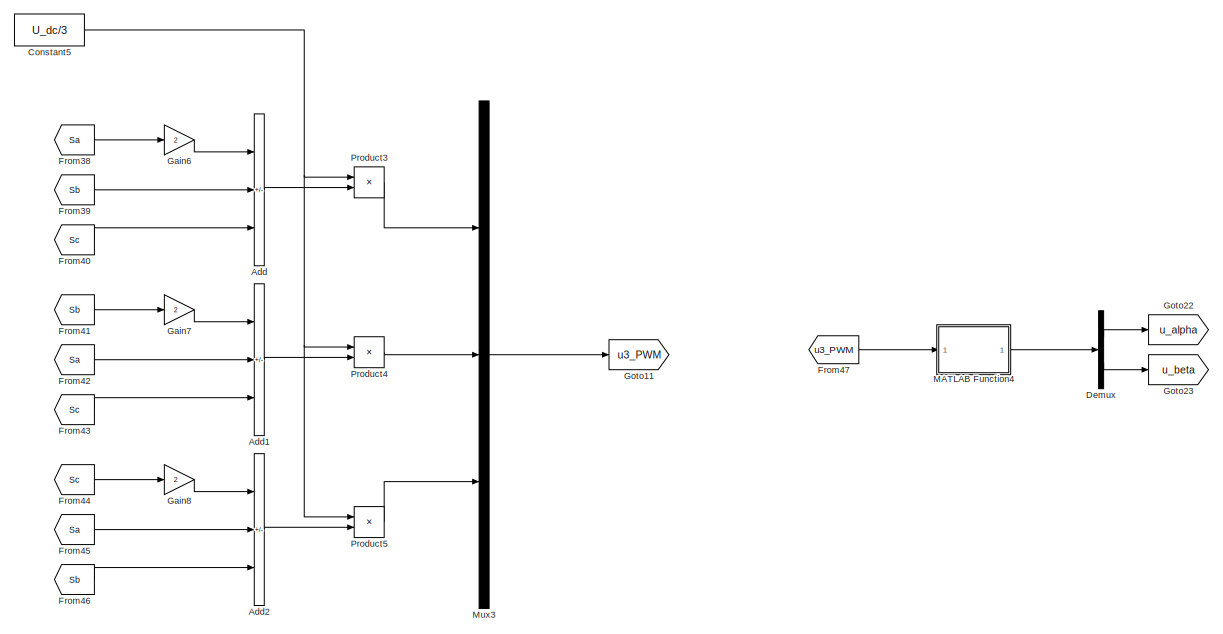
[diagram: root canvas - part 1/8, top right region]
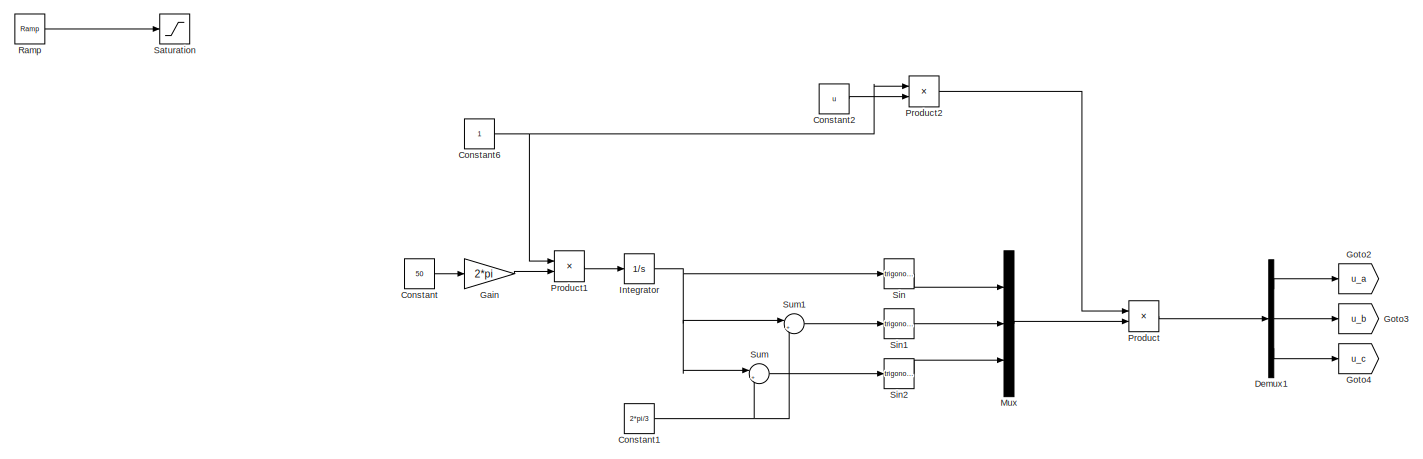
[diagram: root canvas - part 2/8, top left region]
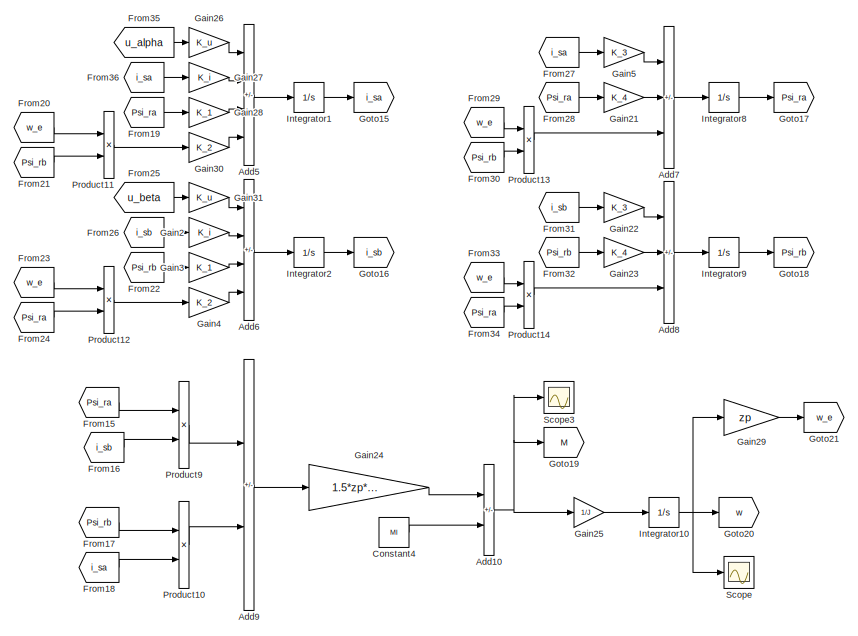
[diagram: root canvas - part 3/8, top right region]
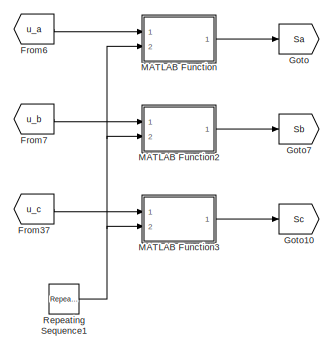
[diagram: root canvas - part 4/8, top center region]
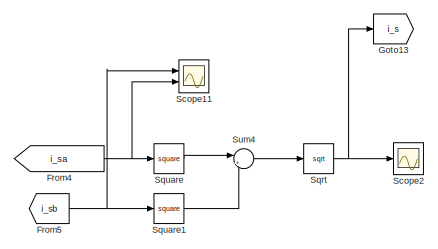
[diagram: root canvas - part 5/8, central region]
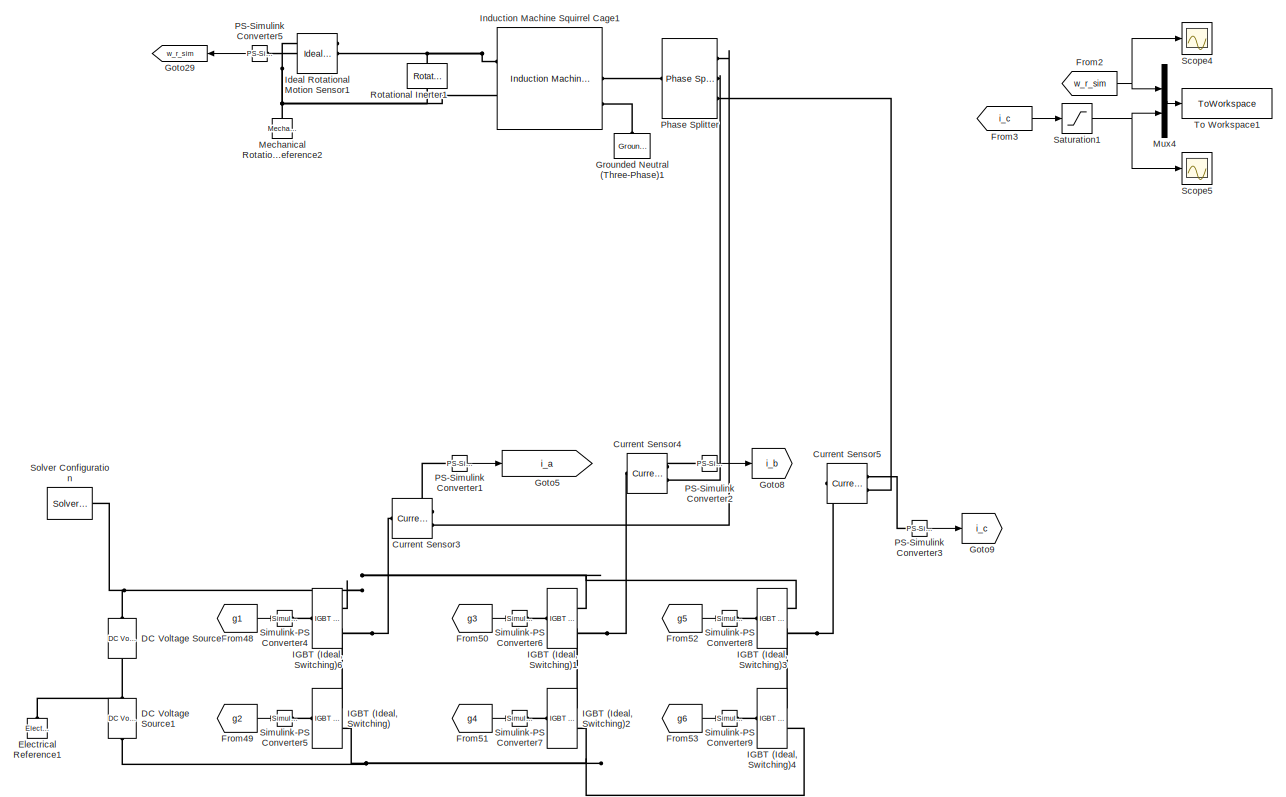
[diagram: root canvas - part 6/8, central region]
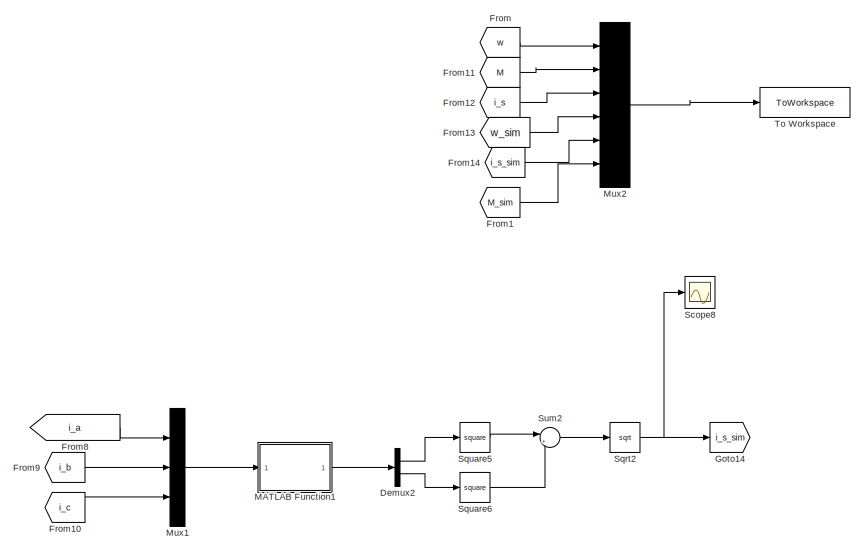
[diagram: root canvas - part 7/8, middle right region]
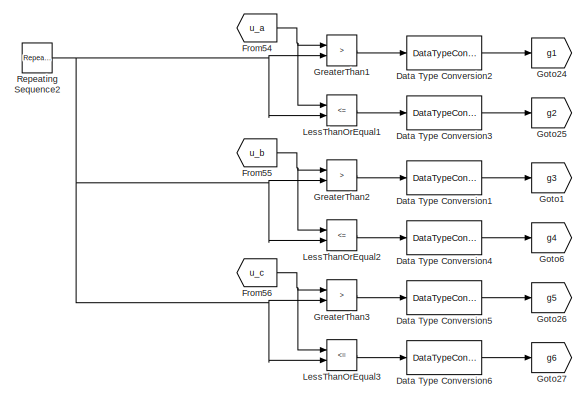
[diagram: root canvas - part 8/8, bottom center region]
MODEL slx_5d42364f2970
KIND model
CONFIG AbsTol = auto
CONFIG EnableMultiTasking = off
CONFIG FixedStep = 2e-5
CONFIG MaxStep = 1e-4
CONFIG MinStep = auto
CONFIG RelTol = 1e-3
CONFIG SampleTimeConstraint = Unconstrained
CONFIG SolverName = ode3
CONFIG StartTime = 0.0
CONFIG StopTime = 1.5
BLOCK [Sum] Add
  IconShape = rectangular
  Inputs = +--
  Ports = [3, 1]
BLOCK [Sum] Add1
  IconShape = rectangular
  Inputs = +--
  Ports = [3, 1]
BLOCK [Sum] Add10
  IconShape = rectangular
  Inputs = +-
  Ports = [2, 1]
BLOCK [Sum] Add2
  IconShape = rectangular
  Inputs = +--
  Ports = [3, 1]
BLOCK [Sum] Add5
  IconShape = rectangular
  Inputs = +-++
  Ports = [4, 1]
BLOCK [Sum] Add6
  IconShape = rectangular
  Inputs = +-+-
  Ports = [4, 1]
BLOCK [Sum] Add7
  IconShape = rectangular
  Inputs = +--
  Ports = [3, 1]
BLOCK [Sum] Add8
  IconShape = rectangular
  Inputs = +-+
  Ports = [3, 1]
BLOCK [Sum] Add9
  IconShape = rectangular
  Inputs = +-
  Ports = [2, 1]
BLOCK [Constant] Constant
  Value = 50
BLOCK [Constant] Constant1
  Value = 2*pi/3
BLOCK [Constant] Constant2
  Value = u
BLOCK [Constant] Constant4
  Value = Ml
BLOCK [Constant] Constant5
  Value = U_dc/3
BLOCK [Constant] Constant6
BLOCK [Reference] Current Sensor3  REF=fl_lib/Electrical/Electrical Sensors/Current Sensor
  Ports = [0, 0, 0, 0, 0, 1, 2]
  SourceBlock = fl_lib/Electrical/Electrical Sensors/Current Sensor
  SourceProductBaseCode = PW,SS,VE
  SourceType = Current Sensor
BLOCK [Reference] Current Sensor4  REF=fl_lib/Electrical/Electrical Sensors/Current Sensor
  Ports = [0, 0, 0, 0, 0, 1, 2]
  SourceBlock = fl_lib/Electrical/Electrical Sensors/Current Sensor
  SourceProductBaseCode = PW,SS,VE
  SourceType = Current Sensor
BLOCK [Reference] Current Sensor5  REF=fl_lib/Electrical/Electrical Sensors/Current Sensor
  Ports = [0, 0, 0, 0, 0, 1, 2]
  SourceBlock = fl_lib/Electrical/Electrical Sensors/Current Sensor
  SourceProductBaseCode = PW,SS,VE
  SourceType = Current Sensor
BLOCK [Reference] DC Voltage Source  REF=ee_lib/Additional
Components/SPICE Sources/DC Voltage Source
  NameLocation = right
  Ports = [0, 0, 0, 0, 0, 1, 1]
  SourceBlock = ee_lib/Additional\nComponents/SPICE Sources/DC Voltage Source
  SourceProductBaseCode = PS
  SourceType = DC Voltage Source
BLOCK [Reference] DC Voltage Source1  REF=ee_lib/Additional
Components/SPICE Sources/DC Voltage Source
  NameLocation = right
  Ports = [0, 0, 0, 0, 0, 1, 1]
  SourceBlock = ee_lib/Additional\nComponents/SPICE Sources/DC Voltage Source
  SourceProductBaseCode = PS
  SourceType = DC Voltage Source
BLOCK [DataTypeConversion] Data Type Conversion1
  RndMeth = Floor
  SaturateOnIntegerOverflow = off
BLOCK [DataTypeConversion] Data Type Conversion2
  RndMeth = Floor
  SaturateOnIntegerOverflow = off
BLOCK [DataTypeConversion] Data Type Conversion3
  RndMeth = Floor
  SaturateOnIntegerOverflow = off
BLOCK [DataTypeConversion] Data Type Conversion4
  RndMeth = Floor
  SaturateOnIntegerOverflow = off
BLOCK [DataTypeConversion] Data Type Conversion5
  RndMeth = Floor
  SaturateOnIntegerOverflow = off
BLOCK [DataTypeConversion] Data Type Conversion6
  RndMeth = Floor
  SaturateOnIntegerOverflow = off
BLOCK [Demux] Demux
  Outputs = 2
  Ports = [1, 2]
BLOCK [Demux] Demux1
  Outputs = 3
  Ports = [1, 3]
BLOCK [Demux] Demux2
  Outputs = 2
  Ports = [1, 2]
BLOCK [Reference] Electrical Reference1  REF=fl_lib/Electrical/Electrical Elements/Electrical Reference
  NameLocation = right
  Ports = [0, 0, 0, 0, 0, 1]
  SourceBlock = fl_lib/Electrical/Electrical Elements/Electrical Reference
  SourceProductBaseCode = PW,SS,VE
  SourceType = Electrical Reference
BLOCK [From] From
  GotoTag = w
BLOCK [From] From1
  GotoTag = M_sim
BLOCK [From] From10
  GotoTag = i_c
BLOCK [From] From11
  GotoTag = M
BLOCK [From] From12
  GotoTag = i_s
BLOCK [From] From13
  GotoTag = w_sim
BLOCK [From] From14
  GotoTag = i_s_sim
BLOCK [From] From15
  GotoTag = Psi_ra
BLOCK [From] From16
  GotoTag = i_sb
BLOCK [From] From17
  GotoTag = Psi_rb
BLOCK [From] From18
  GotoTag = i_sa
BLOCK [From] From19
  GotoTag = Psi_ra
BLOCK [From] From2
  GotoTag = w_r_sim
BLOCK [From] From20
  GotoTag = w_e
BLOCK [From] From21
  GotoTag = Psi_rb
BLOCK [From] From22
  GotoTag = Psi_rb
BLOCK [From] From23
  GotoTag = w_e
BLOCK [From] From24
  GotoTag = Psi_ra
BLOCK [From] From25
  GotoTag = u_beta
BLOCK [From] From26
  GotoTag = i_sb
BLOCK [From] From27
  GotoTag = i_sa
BLOCK [From] From28
  GotoTag = Psi_ra
BLOCK [From] From29
  GotoTag = w_e
BLOCK [From] From3
  GotoTag = i_c
BLOCK [From] From30
  GotoTag = Psi_rb
BLOCK [From] From31
  GotoTag = i_sb
BLOCK [From] From32
  GotoTag = Psi_rb
BLOCK [From] From33
  GotoTag = w_e
BLOCK [From] From34
  GotoTag = Psi_ra
BLOCK [From] From35
  GotoTag = u_alpha
BLOCK [From] From36
  GotoTag = i_sa
BLOCK [From] From37
  GotoTag = u_c
BLOCK [From] From38
  GotoTag = Sa
BLOCK [From] From39
  GotoTag = Sb
BLOCK [From] From4
  GotoTag = i_sa
BLOCK [From] From40
  GotoTag = Sc
BLOCK [From] From41
  GotoTag = Sb
BLOCK [From] From42
  GotoTag = Sa
BLOCK [From] From43
  GotoTag = Sc
BLOCK [From] From44
  GotoTag = Sc
BLOCK [From] From45
  GotoTag = Sa
BLOCK [From] From46
  GotoTag = Sb
BLOCK [From] From47
  GotoTag = u3_PWM
BLOCK [From] From48
  GotoTag = g1
BLOCK [From] From49
  GotoTag = g2
BLOCK [From] From5
  GotoTag = i_sb
BLOCK [From] From50
  GotoTag = g3
BLOCK [From] From51
  GotoTag = g4
BLOCK [From] From52
  GotoTag = g5
BLOCK [From] From53
  GotoTag = g6
BLOCK [From] From54
  GotoTag = u_a
BLOCK [From] From55
  GotoTag = u_b
BLOCK [From] From56
  GotoTag = u_c
BLOCK [From] From6
  GotoTag = u_a
BLOCK [From] From7
  GotoTag = u_b
BLOCK [From] From8
  GotoTag = i_a
BLOCK [From] From9
  GotoTag = i_b
BLOCK [Gain] Gain
  Gain = 2*pi
BLOCK [Gain] Gain2
  Gain = K_i
BLOCK [Gain] Gain21
  Gain = K_4
BLOCK [Gain] Gain22
  Gain = K_3
BLOCK [Gain] Gain23
  Gain = K_4
BLOCK [Gain] Gain24
  Gain = 1.5*zp*Lm/Lr
BLOCK [Gain] Gain25
  Gain = 1/J
BLOCK [Gain] Gain26
  Gain = K_u
BLOCK [Gain] Gain27
  Gain = K_i
BLOCK [Gain] Gain28
  Gain = K_1
BLOCK [Gain] Gain29
  Gain = zp
BLOCK [Gain] Gain3
  Gain = K_1
BLOCK [Gain] Gain30
  Gain = K_2
BLOCK [Gain] Gain31
  Gain = K_u
BLOCK [Gain] Gain4
  Gain = K_2
BLOCK [Gain] Gain5
  Gain = K_3
BLOCK [Gain] Gain6
  Gain = 2
BLOCK [Gain] Gain7
  Gain = 2
BLOCK [Gain] Gain8
  Gain = 2
BLOCK [Goto] Goto
  GotoTag = Sa
BLOCK [Goto] Goto1
  GotoTag = g3
BLOCK [Goto] Goto10
  GotoTag = Sc
BLOCK [Goto] Goto11
  GotoTag = u3_PWM
BLOCK [Goto] Goto13
  GotoTag = i_s
BLOCK [Goto] Goto14
  GotoTag = i_s_sim
BLOCK [Goto] Goto15
  GotoTag = i_sa
BLOCK [Goto] Goto16
  GotoTag = i_sb
BLOCK [Goto] Goto17
  GotoTag = Psi_ra
BLOCK [Goto] Goto18
  GotoTag = Psi_rb
BLOCK [Goto] Goto19
  GotoTag = M
BLOCK [Goto] Goto2
  GotoTag = u_a
BLOCK [Goto] Goto20
  GotoTag = w
BLOCK [Goto] Goto21
  GotoTag = w_e
BLOCK [Goto] Goto22
  GotoTag = u_alpha
BLOCK [Goto] Goto23
  GotoTag = u_beta
BLOCK [Goto] Goto24
  GotoTag = g1
BLOCK [Goto] Goto25
  GotoTag = g2
BLOCK [Goto] Goto26
  GotoTag = g5
BLOCK [Goto] Goto27
  GotoTag = g6
BLOCK [Goto] Goto29
  GotoTag = w_r_sim
  NameLocation = top
BLOCK [Goto] Goto3
  GotoTag = u_b
BLOCK [Goto] Goto4
  GotoTag = u_c
BLOCK [Goto] Goto5
  GotoTag = i_a
BLOCK [Goto] Goto6
  GotoTag = g4
BLOCK [Goto] Goto7
  GotoTag = Sb
BLOCK [Goto] Goto8
  GotoTag = i_b
BLOCK [Goto] Goto9
  GotoTag = i_c
BLOCK [RelationalOperator] GreaterThan1
  InputSameDT = off
  Operator = >
  OutDataTypeStr = boolean
  Ports = [2, 1]
  RndMeth = Simplest
BLOCK [RelationalOperator] GreaterThan2
  InputSameDT = off
  Operator = >
  OutDataTypeStr = boolean
  Ports = [2, 1]
  RndMeth = Simplest
BLOCK [RelationalOperator] GreaterThan3
  InputSameDT = off
  Operator = >
  OutDataTypeStr = boolean
  Ports = [2, 1]
  RndMeth = Simplest
BLOCK [Reference] Grounded Neutral (Three-Phase)1  REF=ee_lib/Connectors &
References/Grounded Neutral
(Three-Phase)
  NameLocation = right
  Ports = [0, 0, 0, 0, 0, 1]
  SourceBlock = ee_lib/Connectors &\nReferences/Grounded Neutral\n(Three-Phase)
  SourceProductBaseCode = PS
  SourceType = Grounded Neutral\n(Three-Phase)
BLOCK [Reference] IGBT (Ideal, Switching)  REF=ee_lib/Semiconductors &
Converters/IGBT
(Ideal,
Switching)
  Ports = [0, 0, 0, 0, 0, 1, 2]
  SourceBlock = ee_lib/Semiconductors &\nConverters/IGBT\n(Ideal,\nSwitching)
  SourceProductBaseCode = PS
  SourceType = IGBT\n(Ideal,\nSwitching)
BLOCK [Reference] IGBT (Ideal, Switching)1  REF=ee_lib/Semiconductors &
Converters/IGBT
(Ideal,
Switching)
  Ports = [0, 0, 0, 0, 0, 1, 2]
  SourceBlock = ee_lib/Semiconductors &\nConverters/IGBT\n(Ideal,\nSwitching)
  SourceProductBaseCode = PS
  SourceType = IGBT\n(Ideal,\nSwitching)
BLOCK [Reference] IGBT (Ideal, Switching)2  REF=ee_lib/Semiconductors &
Converters/IGBT
(Ideal,
Switching)
  Ports = [0, 0, 0, 0, 0, 1, 2]
  SourceBlock = ee_lib/Semiconductors &\nConverters/IGBT\n(Ideal,\nSwitching)
  SourceProductBaseCode = PS
  SourceType = IGBT\n(Ideal,\nSwitching)
BLOCK [Reference] IGBT (Ideal, Switching)3  REF=ee_lib/Semiconductors &
Converters/IGBT
(Ideal,
Switching)
  Ports = [0, 0, 0, 0, 0, 1, 2]
  SourceBlock = ee_lib/Semiconductors &\nConverters/IGBT\n(Ideal,\nSwitching)
  SourceProductBaseCode = PS
  SourceType = IGBT\n(Ideal,\nSwitching)
BLOCK [Reference] IGBT (Ideal, Switching)4  REF=ee_lib/Semiconductors &
Converters/IGBT
(Ideal,
Switching)
  Ports = [0, 0, 0, 0, 0, 1, 2]
  SourceBlock = ee_lib/Semiconductors &\nConverters/IGBT\n(Ideal,\nSwitching)
  SourceProductBaseCode = PS
  SourceType = IGBT\n(Ideal,\nSwitching)
BLOCK [Reference] IGBT (Ideal, Switching)6  REF=ee_lib/Semiconductors &
Converters/IGBT
(Ideal,
Switching)
  Ports = [0, 0, 0, 0, 0, 1, 2]
  SourceBlock = ee_lib/Semiconductors &\nConverters/IGBT\n(Ideal,\nSwitching)
  SourceProductBaseCode = PS
  SourceType = IGBT\n(Ideal,\nSwitching)
BLOCK [Reference] Ideal Rotational Motion Sensor1  REF=fl_lib/Mechanical/Mechanical Sensors/Ideal Rotational
Motion Sensor
  NameLocation = top
  Ports = [0, 0, 0, 0, 0, 1, 3]
  SourceBlock = fl_lib/Mechanical/Mechanical Sensors/Ideal Rotational\nMotion Sensor
  SourceProductBaseCode = PW,SS,VE
  SourceType = Ideal Rotational\nMotion Sensor
BLOCK [Reference] Induction Machine Squirrel Cage1  REF=ee_lib/Electromechanical/Asynchronous/Induction Machine
Squirrel Cage
  Ports = [0, 0, 0, 0, 0, 2, 3]
  SourceBlock = ee_lib/Electromechanical/Asynchronous/Induction Machine\nSquirrel Cage
  SourceProductBaseCode = PS
  SourceType = Induction Machine\nSquirrel Cage
BLOCK [Integrator] Integrator
  Ports = [1, 1]
BLOCK [Integrator] Integrator1
  Ports = [1, 1]
BLOCK [Integrator] Integrator10
  Ports = [1, 1]
BLOCK [Integrator] Integrator2
  Ports = [1, 1]
BLOCK [Integrator] Integrator8
  Ports = [1, 1]
BLOCK [Integrator] Integrator9
  Ports = [1, 1]
BLOCK [RelationalOperator] LessThanOrEqual1
  InputSameDT = off
  Operator = <=
  OutDataTypeStr = boolean
  Ports = [2, 1]
  RndMeth = Simplest
BLOCK [RelationalOperator] LessThanOrEqual2
  InputSameDT = off
  Operator = <=
  OutDataTypeStr = boolean
  Ports = [2, 1]
  RndMeth = Simplest
BLOCK [RelationalOperator] LessThanOrEqual3
  InputSameDT = off
  Operator = <=
  OutDataTypeStr = boolean
  Ports = [2, 1]
  RndMeth = Simplest
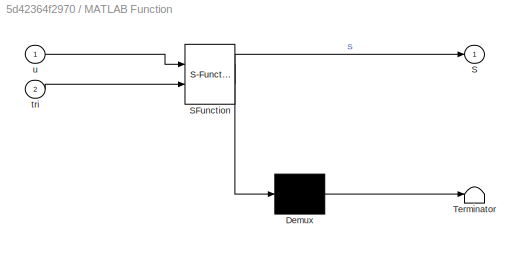
BLOCK [SubSystem] MATLAB Function
  ErrorFcn = Stateflow.Translate.translate
  PermitHierarchicalResolution = ExplicitOnly
  Ports = [2, 1]
  RequestExecContextInheritance = off
  SFBlockType = MATLAB Function
  TreatAsAtomicUnit = on
BLOCK [Demux] MATLAB Function/ Demux 
  Outputs = 1
  Ports = [1, 1]
BLOCK [S-Function] MATLAB Function/ SFunction 
  EnableBusSupport = on
  FunctionName = sf_sfun
  PortCounts = [2 2]
  Ports = [2, 2]
  SFcnIsStateOwnerBlock = off
  SFunctionDeploymentMode = off
  Tag = Stateflow S-Function 2
BLOCK [Terminator] MATLAB Function/ Terminator 
BLOCK [Outport] MATLAB Function/S
BLOCK [Inport] MATLAB Function/tri
  Port = 2
BLOCK [Inport] MATLAB Function/u
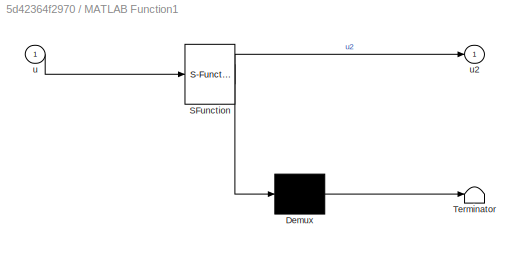
BLOCK [SubSystem] MATLAB Function1
  ErrorFcn = Stateflow.Translate.translate
  PermitHierarchicalResolution = ExplicitOnly
  Ports = [1, 1]
  RequestExecContextInheritance = off
  SFBlockType = MATLAB Function
  SystemSampleTime = 2e-5
  TreatAsAtomicUnit = on
BLOCK [Demux] MATLAB Function1/ Demux 
  Outputs = 1
  Ports = [1, 1]
BLOCK [S-Function] MATLAB Function1/ SFunction 
  EnableBusSupport = on
  FunctionName = sf_sfun
  PortCounts = [1 2]
  Ports = [1, 2]
  SFcnIsStateOwnerBlock = off
  SFunctionDeploymentMode = off
  Tag = Stateflow S-Function 1
BLOCK [Terminator] MATLAB Function1/ Terminator 
BLOCK [Inport] MATLAB Function1/u
BLOCK [Outport] MATLAB Function1/u2
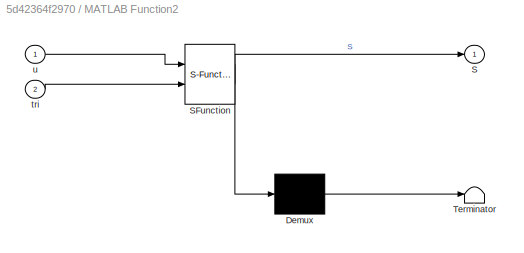
BLOCK [SubSystem] MATLAB Function2
  ErrorFcn = Stateflow.Translate.translate
  PermitHierarchicalResolution = ExplicitOnly
  Ports = [2, 1]
  RequestExecContextInheritance = off
  SFBlockType = MATLAB Function
  TreatAsAtomicUnit = on
BLOCK [Demux] MATLAB Function2/ Demux 
  Outputs = 1
  Ports = [1, 1]
BLOCK [S-Function] MATLAB Function2/ SFunction 
  EnableBusSupport = on
  FunctionName = sf_sfun
  PortCounts = [2 2]
  Ports = [2, 2]
  SFcnIsStateOwnerBlock = off
  SFunctionDeploymentMode = off
  Tag = Stateflow S-Function 3
BLOCK [Terminator] MATLAB Function2/ Terminator 
BLOCK [Outport] MATLAB Function2/S
BLOCK [Inport] MATLAB Function2/tri
  Port = 2
BLOCK [Inport] MATLAB Function2/u
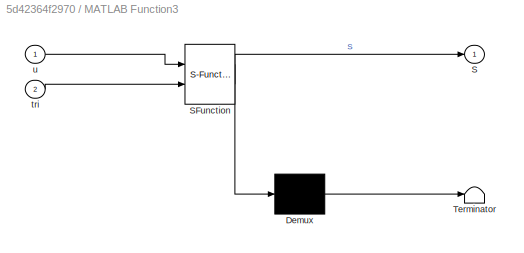
BLOCK [SubSystem] MATLAB Function3
  ErrorFcn = Stateflow.Translate.translate
  PermitHierarchicalResolution = ExplicitOnly
  Ports = [2, 1]
  RequestExecContextInheritance = off
  SFBlockType = MATLAB Function
  TreatAsAtomicUnit = on
BLOCK [Demux] MATLAB Function3/ Demux 
  Outputs = 1
  Ports = [1, 1]
BLOCK [S-Function] MATLAB Function3/ SFunction 
  EnableBusSupport = on
  FunctionName = sf_sfun
  PortCounts = [2 2]
  Ports = [2, 2]
  SFcnIsStateOwnerBlock = off
  SFunctionDeploymentMode = off
  Tag = Stateflow S-Function 4
BLOCK [Terminator] MATLAB Function3/ Terminator 
BLOCK [Outport] MATLAB Function3/S
BLOCK [Inport] MATLAB Function3/tri
  Port = 2
BLOCK [Inport] MATLAB Function3/u
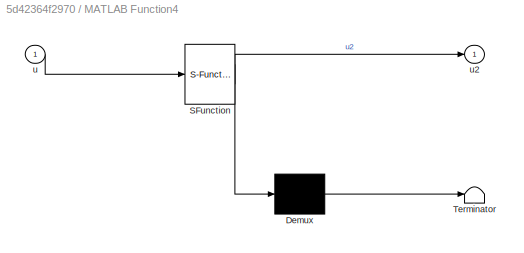
BLOCK [SubSystem] MATLAB Function4
  ErrorFcn = Stateflow.Translate.translate
  PermitHierarchicalResolution = ExplicitOnly
  Ports = [1, 1]
  RequestExecContextInheritance = off
  SFBlockType = MATLAB Function
  SystemSampleTime = 2e-5
  TreatAsAtomicUnit = on
BLOCK [Demux] MATLAB Function4/ Demux 
  Outputs = 1
  Ports = [1, 1]
BLOCK [S-Function] MATLAB Function4/ SFunction 
  EnableBusSupport = on
  FunctionName = sf_sfun
  PortCounts = [1 2]
  Ports = [1, 2]
  SFcnIsStateOwnerBlock = off
  SFunctionDeploymentMode = off
  Tag = Stateflow S-Function 5
BLOCK [Terminator] MATLAB Function4/ Terminator 
BLOCK [Inport] MATLAB Function4/u
BLOCK [Outport] MATLAB Function4/u2
BLOCK [Reference] Mechanical Rotational Reference2  REF=fl_lib/Mechanical/Rotational Elements/Mechanical
Rotational Reference
  NameLocation = right
  Ports = [0, 0, 0, 0, 0, 1]
  SourceBlock = fl_lib/Mechanical/Rotational Elements/Mechanical\nRotational Reference
  SourceProductBaseCode = PW,SS,VE
  SourceType = Mechanical\nRotational Reference
BLOCK [Mux] Mux
  DisplayOption = bar
  Inputs = 3
  Ports = [3, 1]
BLOCK [Mux] Mux1
  DisplayOption = bar
  Inputs = 3
  Ports = [3, 1]
BLOCK [Mux] Mux2
  DisplayOption = bar
  Inputs = 6
  Ports = [6, 1]
BLOCK [Mux] Mux3
  DisplayOption = bar
  Inputs = 3
  Ports = [3, 1]
BLOCK [Mux] Mux4
  DisplayOption = bar
  Inputs = 2
  Ports = [2, 1]
BLOCK [Reference] PS-Simulink Converter1  REF=nesl_utility/PS-Simulink
Converter
  Ports = [0, 1, 0, 0, 0, 1]
  SourceBlock = nesl_utility/PS-Simulink\nConverter
  SourceProductBaseCode = SS,PW,VE
  SourceType = PS-Simulink\nConverter
BLOCK [Reference] PS-Simulink Converter2  REF=nesl_utility/PS-Simulink
Converter
  Ports = [0, 1, 0, 0, 0, 1]
  SourceBlock = nesl_utility/PS-Simulink\nConverter
  SourceProductBaseCode = SS,PW,VE
  SourceType = PS-Simulink\nConverter
BLOCK [Reference] PS-Simulink Converter3  REF=nesl_utility/PS-Simulink
Converter
  Ports = [0, 1, 0, 0, 0, 1]
  SourceBlock = nesl_utility/PS-Simulink\nConverter
  SourceProductBaseCode = SS,PW,VE
  SourceType = PS-Simulink\nConverter
BLOCK [Reference] PS-Simulink Converter5  REF=nesl_utility/PS-Simulink
Converter
  NameLocation = top
  Ports = [0, 1, 0, 0, 0, 1]
  SourceBlock = nesl_utility/PS-Simulink\nConverter
  SourceProductBaseCode = SS,PW,VE
  SourceType = PS-Simulink\nConverter
BLOCK [Reference] Phase Splitter  REF=ee_lib/Connectors &
References/Phase Splitter
  Ports = [0, 0, 0, 0, 0, 1, 3]
  SourceBlock = ee_lib/Connectors &\nReferences/Phase Splitter
  SourceProductBaseCode = PS
  SourceType = Phase Splitter
BLOCK [Product] Product
  Ports = [2, 1]
BLOCK [Product] Product1
  Ports = [2, 1]
BLOCK [Product] Product10
  Ports = [2, 1]
BLOCK [Product] Product11
  Ports = [2, 1]
BLOCK [Product] Product12
  Ports = [2, 1]
BLOCK [Product] Product13
  Ports = [2, 1]
BLOCK [Product] Product14
  Ports = [2, 1]
BLOCK [Product] Product2
  Ports = [2, 1]
BLOCK [Product] Product3
  Ports = [2, 1]
BLOCK [Product] Product4
  Ports = [2, 1]
BLOCK [Product] Product5
  Ports = [2, 1]
BLOCK [Product] Product9
  Ports = [2, 1]
BLOCK [Reference] Ramp  REF=simulink/Sources/Ramp
  Ports = [0, 1]
  SourceBlock = simulink/Sources/Ramp
  SourceProductBaseCode = SL
  SourceType = Ramp
BLOCK [Reference] Repeating Sequence1  REF=simulink/Sources/Repeating
Sequence
  Ports = [0, 1]
  SourceBlock = simulink/Sources/Repeating\nSequence
  SourceProductBaseCode = SL
  SourceType = Repeating table
BLOCK [Reference] Repeating Sequence2  REF=simulink/Sources/Repeating
Sequence
  Ports = [0, 1]
  SourceBlock = simulink/Sources/Repeating\nSequence
  SourceProductBaseCode = SL
  SourceType = Repeating table
BLOCK [Reference] Rotational Inerter1  REF=fl_lib/Mechanical/Rotational Elements/Rotational Inerter
  NameLocation = left
  Ports = [0, 0, 0, 0, 0, 1, 1]
  SourceBlock = fl_lib/Mechanical/Rotational Elements/Rotational Inerter
  SourceProductBaseCode = PW,SS,VE
  SourceType = Rotational Inerter
BLOCK [Saturate] Saturation
  LowerLimit = 0.05
  UpperLimit = 1
BLOCK [Saturate] Saturation1
  LowerLimit = 2
  UpperLimit = 5
BLOCK [Scope] Scope
  Floating = off
  NumInputPorts = 1
  Ports = [1]
  ScopeSpecificationString = Simulink.scopes.TimeScopeBlockCfg('CurrentConfiguration', extmgr.ConfigurationSet(extmgr.Configuration('Core','General UI',true),extmgr.Configuration('Core','Source UI',true),extmgr.Configuration('Sources','WiredSimulink',true,'DataLoggingVariableName','ScopeData1'),extmgr.Configuration('Visuals','Time Domain',true,'SerializedDisplays',{struct('MinYLimReal','-0.80873','MaxYLimReal','6.63842','YLab...<+1421ch>
BLOCK [Scope] Scope11
  Floating = off
  NumInputPorts = 2
  Ports = [2]
  ScopeSpecificationString = Simulink.scopes.TimeScopeBlockCfg('CurrentConfiguration', extmgr.ConfigurationSet(extmgr.Configuration('Core','General UI',true),extmgr.Configuration('Core','Source UI',true),extmgr.Configuration('Sources','WiredSimulink',true,'DataLoggingVariableName','ScopeData6'),extmgr.Configuration('Visuals','Time Domain',true,'SerializedDisplays',{struct('MinYLimReal','-16.54464','MaxYLimReal','20.1128','YLa...<+1417ch>
BLOCK [Scope] Scope2
  Floating = off
  NumInputPorts = 1
  Ports = [1]
  ScopeSpecificationString = Simulink.scopes.TimeScopeBlockCfg('CurrentConfiguration', extmgr.ConfigurationSet(extmgr.Configuration('Core','General UI',true),extmgr.Configuration('Core','Source UI',true),extmgr.Configuration('Sources','WiredSimulink',true,'DataLoggingVariableName','ScopeData3'),extmgr.Configuration('Visuals','Time Domain',true,'SerializedDisplays',{struct('MinYLimReal','-2.09113','MaxYLimReal','18.82016','YLa...<+1398ch>
BLOCK [Scope] Scope3
  Floating = off
  NumInputPorts = 1
  Ports = [1]
  ScopeSpecificationString = Simulink.scopes.TimeScopeBlockCfg('CurrentConfiguration', extmgr.ConfigurationSet(extmgr.Configuration('Core','General UI',true),extmgr.Configuration('Core','Source UI',true),extmgr.Configuration('Sources','WiredSimulink',true,'DataLoggingVariableName','ScopeData2'),extmgr.Configuration('Visuals','Time Domain',true,'SerializedDisplays',{struct('MinYLimReal','-13.57274','MaxYLimReal','28.92729','YL...<+1420ch>
BLOCK [Scope] Scope4
  Floating = off
  NumInputPorts = 1
  Ports = [1]
  ScopeSpecificationString = Simulink.scopes.TimeScopeBlockCfg('CurrentConfiguration', extmgr.ConfigurationSet(extmgr.Configuration('Core','General UI',true),extmgr.Configuration('Core','Source UI',true),extmgr.Configuration('Sources','WiredSimulink',true,'DataLoggingVariableName','ScopeData1'),extmgr.Configuration('Visuals','Time Domain',true,'SerializedDisplays',{struct('MinYLimReal','-13.44276','MaxYLimReal','120.98481','Y...<+1415ch>
BLOCK [Scope] Scope5
  Floating = off
  NumInputPorts = 1
  Ports = [1]
  ScopeSpecificationString = Simulink.scopes.TimeScopeBlockCfg('CurrentConfiguration', extmgr.ConfigurationSet(extmgr.Configuration('Core','General UI',true),extmgr.Configuration('Core','Source UI',true),extmgr.Configuration('Sources','WiredSimulink',true,'DataLoggingVariableName','ScopeData2'),extmgr.Configuration('Visuals','Time Domain',true,'SerializedDisplays',{struct('MinYLimReal','-1.93987','MaxYLimReal','3.05837','YLab...<+1406ch>
BLOCK [Scope] Scope8
  Floating = off
  NumInputPorts = 1
  Ports = [1]
  ScopeSpecificationString = Simulink.scopes.TimeScopeBlockCfg('CurrentConfiguration', extmgr.ConfigurationSet(extmgr.Configuration('Core','General UI',true),extmgr.Configuration('Core','Source UI',true),extmgr.Configuration('Sources','WiredSimulink',true,'DataLoggingVariableName','ScopeData6'),extmgr.Configuration('Visuals','Time Domain',true,'SerializedDisplays',{struct('MinYLimReal','-0.7338','MaxYLimReal','6.60422','YLabe...<+1395ch>
BLOCK [Reference] Simulink-PS Converter4  REF=nesl_utility/Simulink-PS
Converter
  Ports = [1, 0, 0, 0, 0, 0, 1]
  SourceBlock = nesl_utility/Simulink-PS\nConverter
  SourceProductBaseCode = SS,PW,VE
  SourceType = Simulink-PS\nConverter
BLOCK [Reference] Simulink-PS Converter5  REF=nesl_utility/Simulink-PS
Converter
  Ports = [1, 0, 0, 0, 0, 0, 1]
  SourceBlock = nesl_utility/Simulink-PS\nConverter
  SourceProductBaseCode = SS,PW,VE
  SourceType = Simulink-PS\nConverter
BLOCK [Reference] Simulink-PS Converter6  REF=nesl_utility/Simulink-PS
Converter
  Ports = [1, 0, 0, 0, 0, 0, 1]
  SourceBlock = nesl_utility/Simulink-PS\nConverter
  SourceProductBaseCode = SS,PW,VE
  SourceType = Simulink-PS\nConverter
BLOCK [Reference] Simulink-PS Converter7  REF=nesl_utility/Simulink-PS
Converter
  Ports = [1, 0, 0, 0, 0, 0, 1]
  SourceBlock = nesl_utility/Simulink-PS\nConverter
  SourceProductBaseCode = SS,PW,VE
  SourceType = Simulink-PS\nConverter
BLOCK [Reference] Simulink-PS Converter8  REF=nesl_utility/Simulink-PS
Converter
  Ports = [1, 0, 0, 0, 0, 0, 1]
  SourceBlock = nesl_utility/Simulink-PS\nConverter
  SourceProductBaseCode = SS,PW,VE
  SourceType = Simulink-PS\nConverter
BLOCK [Reference] Simulink-PS Converter9  REF=nesl_utility/Simulink-PS
Converter
  Ports = [1, 0, 0, 0, 0, 0, 1]
  SourceBlock = nesl_utility/Simulink-PS\nConverter
  SourceProductBaseCode = SS,PW,VE
  SourceType = Simulink-PS\nConverter
BLOCK [Trigonometry] Sin
  Ports = [1, 1]
BLOCK [Trigonometry] Sin1
  Ports = [1, 1]
BLOCK [Trigonometry] Sin2
  Ports = [1, 1]
BLOCK [Reference] Solver Configuration  REF=nesl_utility/Solver
Configuration
  Ports = [0, 0, 0, 0, 0, 0, 1]
  SourceBlock = nesl_utility/Solver\nConfiguration
  SourceProductBaseCode = SS,PW,VE
  SourceType = Solver\nConfiguration
BLOCK [Sqrt] Sqrt
BLOCK [Sqrt] Sqrt2
BLOCK [Math] Square
  Operator = square
  Ports = [1, 1]
BLOCK [Math] Square1
  Operator = square
  Ports = [1, 1]
BLOCK [Math] Square5
  Operator = square
  Ports = [1, 1]
BLOCK [Math] Square6
  Operator = square
  Ports = [1, 1]
BLOCK [Sum] Sum
  Inputs = |++
  Ports = [2, 1]
BLOCK [Sum] Sum1
  Inputs = |+-
  Ports = [2, 1]
BLOCK [Sum] Sum2
  Inputs = |++
  Ports = [2, 1]
BLOCK [Sum] Sum4
  Inputs = |++
  Ports = [2, 1]
BLOCK [ToWorkspace] To Workspace
  FixptAsFi = on
  MaxDataPoints = inf
  Ports = [1]
  SampleTime = 1e-4
  SaveFormat = Structure With Time
  VariableName = simout
BLOCK [ToWorkspace] To Workspace1
  FixptAsFi = on
  MaxDataPoints = inf
  Ports = [1]
  SampleTime = -1
  SaveFormat = Timeseries
  VariableName = sim
NET Add10:1 -> Gain25:1, Goto19:1, Scope3:1
LINE Add1:1 -> Product4:2
LINE Add2:1 -> Product5:2
LINE Add5:1 -> Integrator1:1
LINE Add6:1 -> Integrator2:1
LINE Add7:1 -> Integrator8:1
LINE Add8:1 -> Integrator9:1
LINE Add9:1 -> Gain24:1
LINE Add:1 -> Product3:2
NET Constant1:1 -> Sum1:2, Sum:2
LINE Constant2:1 -> Product2:2
LINE Constant4:1 -> Add10:2
NET Constant5:1 -> Product3:1, Product4:1, Product5:1
NET Constant6:1 -> Product1:1, Product2:1
LINE Constant:1 -> Gain:1
LINE Data Type Conversion1:1 -> Goto1:1
LINE Data Type Conversion2:1 -> Goto24:1
LINE Data Type Conversion3:1 -> Goto25:1
LINE Data Type Conversion4:1 -> Goto6:1
LINE Data Type Conversion5:1 -> Goto26:1
LINE Data Type Conversion6:1 -> Goto27:1
LINE Demux1:1 -> Goto2:1
LINE Demux1:2 -> Goto3:1
LINE Demux1:3 -> Goto4:1
LINE Demux2:1 -> Square5:1
LINE Demux2:2 -> Square6:1
LINE Demux:1 -> Goto22:1
LINE Demux:2 -> Goto23:1
LINE From10:1 -> Mux1:3
LINE From11:1 -> Mux2:2
LINE From12:1 -> Mux2:3
LINE From13:1 -> Mux2:4
LINE From14:1 -> Mux2:5
LINE From15:1 -> Product9:1
LINE From16:1 -> Product9:2
LINE From17:1 -> Product10:1
LINE From18:1 -> Product10:2
LINE From19:1 -> Gain28:1
LINE From1:1 -> Mux2:6
LINE From20:1 -> Product11:1
LINE From21:1 -> Product11:2
LINE From22:1 -> Gain3:1
LINE From23:1 -> Product12:1
LINE From24:1 -> Product12:2
LINE From25:1 -> Gain31:1
LINE From26:1 -> Gain2:1
LINE From27:1 -> Gain5:1
LINE From28:1 -> Gain21:1
LINE From29:1 -> Product13:1
NET From2:1 -> Mux4:1, Scope4:1
LINE From30:1 -> Product13:2
LINE From31:1 -> Gain22:1
LINE From32:1 -> Gain23:1
LINE From33:1 -> Product14:1
LINE From34:1 -> Product14:2
LINE From35:1 -> Gain26:1
LINE From36:1 -> Gain27:1
LINE From37:1 -> MATLAB Function3:1
LINE From38:1 -> Gain6:1
LINE From39:1 -> Add:2
LINE From3:1 -> Saturation1:1
LINE From40:1 -> Add:3
LINE From41:1 -> Gain7:1
LINE From42:1 -> Add1:2
LINE From43:1 -> Add1:3
LINE From44:1 -> Gain8:1
LINE From45:1 -> Add2:2
LINE From46:1 -> Add2:3
LINE From47:1 -> MATLAB Function4:1
LINE From48:1 -> Simulink-PS Converter4:1
LINE From49:1 -> Simulink-PS Converter5:1
NET From4:1 -> Scope11:2, Square:1
LINE From50:1 -> Simulink-PS Converter6:1
LINE From51:1 -> Simulink-PS Converter7:1
LINE From52:1 -> Simulink-PS Converter8:1
LINE From53:1 -> Simulink-PS Converter9:1
NET From54:1 -> GreaterThan1:1, LessThanOrEqual1:1
NET From55:1 -> GreaterThan2:1, LessThanOrEqual2:1
NET From56:1 -> GreaterThan3:1, LessThanOrEqual3:1
NET From5:1 -> Scope11:1, Square1:1
LINE From6:1 -> MATLAB Function:1
LINE From7:1 -> MATLAB Function2:1
LINE From8:1 -> Mux1:1
LINE From9:1 -> Mux1:2
LINE From:1 -> Mux2:1
LINE Gain21:1 -> Add7:2
LINE Gain22:1 -> Add8:1
LINE Gain23:1 -> Add8:2
LINE Gain24:1 -> Add10:1
LINE Gain25:1 -> Integrator10:1
LINE Gain26:1 -> Add5:1
LINE Gain27:1 -> Add5:2
LINE Gain28:1 -> Add5:3
LINE Gain29:1 -> Goto21:1
LINE Gain2:1 -> Add6:2
LINE Gain30:1 -> Add5:4
LINE Gain31:1 -> Add6:1
LINE Gain3:1 -> Add6:3
LINE Gain4:1 -> Add6:4
LINE Gain5:1 -> Add7:1
LINE Gain6:1 -> Add:1
LINE Gain7:1 -> Add1:1
LINE Gain8:1 -> Add2:1
LINE Gain:1 -> Product1:2
LINE GreaterThan1:1 -> Data Type Conversion2:1
LINE GreaterThan2:1 -> Data Type Conversion1:1
LINE GreaterThan3:1 -> Data Type Conversion5:1
NET Integrator10:1 -> Gain29:1, Goto20:1, Scope:1
LINE Integrator1:1 -> Goto15:1
LINE Integrator2:1 -> Goto16:1
LINE Integrator8:1 -> Goto17:1
LINE Integrator9:1 -> Goto18:1
NET Integrator:1 -> Sin:1, Sum1:1, Sum:1
LINE LessThanOrEqual1:1 -> Data Type Conversion3:1
LINE LessThanOrEqual2:1 -> Data Type Conversion4:1
LINE LessThanOrEqual3:1 -> Data Type Conversion6:1
LINE MATLAB Function1:1 -> Demux2:1
LINE MATLAB Function2:1 -> Goto7:1
LINE MATLAB Function3:1 -> Goto10:1
LINE MATLAB Function4:1 -> Demux:1
LINE MATLAB Function:1 -> Goto:1
LINE Mux1:1 -> MATLAB Function1:1
LINE Mux2:1 -> To Workspace:1
LINE Mux3:1 -> Goto11:1
LINE Mux4:1 -> To Workspace1:1
LINE Mux:1 -> Product:2
LINE PS-Simulink Converter1:1 -> Goto5:1
LINE PS-Simulink Converter2:1 -> Goto8:1
LINE PS-Simulink Converter3:1 -> Goto9:1
LINE PS-Simulink Converter5:1 -> Goto29:1
LINE Product10:1 -> Add9:2
LINE Product11:1 -> Gain30:1
LINE Product12:1 -> Gain4:1
LINE Product13:1 -> Add7:3
LINE Product14:1 -> Add8:3
LINE Product1:1 -> Integrator:1
LINE Product2:1 -> Product:1
LINE Product3:1 -> Mux3:1
LINE Product4:1 -> Mux3:2
LINE Product5:1 -> Mux3:3
LINE Product9:1 -> Add9:1
LINE Product:1 -> Demux1:1
LINE Ramp:1 -> Saturation:1
NET Repeating Sequence1:1 -> MATLAB Function2:2, MATLAB Function3:2, MATLAB Function:2
NET Repeating Sequence2:1 -> GreaterThan1:2, GreaterThan2:2, GreaterThan3:2, LessThanOrEqual1:2, LessThanOrEqual2:2, LessThanOrEqual3:2
NET Saturation1:1 -> Mux4:2, Scope5:1
LINE Sin1:1 -> Mux:2
LINE Sin2:1 -> Mux:3
LINE Sin:1 -> Mux:1
NET Sqrt2:1 -> Goto14:1, Scope8:1
NET Sqrt:1 -> Goto13:1, Scope2:1
LINE Square1:1 -> Sum4:2
LINE Square5:1 -> Sum2:1
LINE Square6:1 -> Sum2:2
LINE Square:1 -> Sum4:1
LINE Sum1:1 -> Sin1:1
LINE Sum2:1 -> Sqrt2:1
LINE Sum4:1 -> Sqrt:1
LINE Sum:1 -> Sin2:1
PNET net1: Current Sensor3:LConn1 -- IGBT (Ideal, Switching)6:RConn2 -- IGBT (Ideal, Switching):RConn1
PLINE Current Sensor3:RConn1 -- PS-Simulink Converter1:LConn1
PLINE Current Sensor3:RConn2 -- Phase Splitter:RConn1
PNET net2: Current Sensor4:LConn1 -- IGBT (Ideal, Switching)1:RConn2 -- IGBT (Ideal, Switching)2:RConn1
PLINE Current Sensor4:RConn1 -- PS-Simulink Converter2:LConn1
PLINE Current Sensor4:RConn2 -- Phase Splitter:RConn2
PNET net3: Current Sensor5:LConn1 -- IGBT (Ideal, Switching)3:RConn2 -- IGBT (Ideal, Switching)4:RConn1
PLINE Current Sensor5:RConn1 -- PS-Simulink Converter3:LConn1
PLINE Current Sensor5:RConn2 -- Phase Splitter:RConn3
PNET net4: DC Voltage Source1:LConn1 -- DC Voltage Source:RConn1 -- Electrical Reference1:LConn1
PNET net5: DC Voltage Source1:RConn1 -- IGBT (Ideal, Switching)2:RConn2 -- IGBT (Ideal, Switching)4:RConn2 -- IGBT (Ideal, Switching):RConn2
PNET net6: DC Voltage Source:LConn1 -- IGBT (Ideal, Switching)1:RConn1 -- IGBT (Ideal, Switching)3:RConn1 -- IGBT (Ideal, Switching)6:RConn1 -- Solver Configuration:RConn1
PLINE Grounded Neutral (Three-Phase)1:LConn1 -- Induction Machine Squirrel Cage1:RConn3
PLINE IGBT (Ideal, Switching)1:LConn1 -- Simulink-PS Converter6:RConn1
PLINE IGBT (Ideal, Switching)2:LConn1 -- Simulink-PS Converter7:RConn1
PLINE IGBT (Ideal, Switching)3:LConn1 -- Simulink-PS Converter8:RConn1
PLINE IGBT (Ideal, Switching)4:LConn1 -- Simulink-PS Converter9:RConn1
PLINE IGBT (Ideal, Switching)6:LConn1 -- Simulink-PS Converter4:RConn1
PLINE IGBT (Ideal, Switching):LConn1 -- Simulink-PS Converter5:RConn1
PNET net7: Ideal Rotational Motion Sensor1:LConn1 -- Induction Machine Squirrel Cage1:LConn1 -- Rotational Inerter1:LConn1
PNET net8: Ideal Rotational Motion Sensor1:RConn1 -- Induction Machine Squirrel Cage1:LConn2 -- Mechanical Rotational Reference2:LConn1 -- Rotational Inerter1:RConn1
PLINE Ideal Rotational Motion Sensor1:RConn2 -- PS-Simulink Converter5:LConn1
PLINE Induction Machine Squirrel Cage1:RConn2 -- Phase Splitter:LConn1
note: NET lines group one-source signal fan-out (src -> all destinations, sorted); 1:1 wires keep LINE; PNET lines group multi-terminal physical nets as a canonical sorted terminal list (undirected conserving connections); 2-terminal nets keep the pairwise PLINE form
CHART MATLAB Function states=1 transitions=1
  STATE_LABEL 'eML_blk_kernel()'
  STATE_LABEL 'SCRIPT:\nfunction S = fcn(u, tri)\nif u >= tri\n    S = 1;\nelse\n    S = 0;\nend\n'
CHART MATLAB Function2 states=1 transitions=1
  STATE_LABEL 'eML_blk_kernel()'
  STATE_LABEL 'SCRIPT:\nfunction S = fcn(u, tri)\nif u >= tri\n    S = 1;\nelse\n    S = 0;\nend\n'
CHART MATLAB Function3 states=1 transitions=1
  STATE_LABEL 'eML_blk_kernel()'
  STATE_LABEL 'SCRIPT:\nfunction S = fcn(u, tri)\nif u >= tri\n    S = 1;\nelse\n    S = 0;\nend\n'
CHART MATLAB Function4 states=1 transitions=1
  STATE_LABEL 'eML_blk_kernel()'
  STATE_LABEL 'SCRIPT:\nfunction u2 = abc2alpha_beta(u)\n\nu2 = [2/3 -1/3 -1/3;\n    0 1/sqrt(3) -1/sqrt(3)]*u;\nend\n'
CHART MATLAB Function1 states=1 transitions=1
  STATE_LABEL 'eML_blk_kernel()'
  STATE_LABEL 'SCRIPT:\nfunction u2 = abc2alpha_beta(u)\n\nu2 = [2/3 -1/3 -1/3;\n    0 1/sqrt(3) -1/sqrt(3)]*u;\nend\n'
CHART  states=0 transitions=0
CHART  states=0 transitions=0
CHART  states=0 transitions=0
CHART  states=0 transitions=0
CHART  states=0 transitions=0
